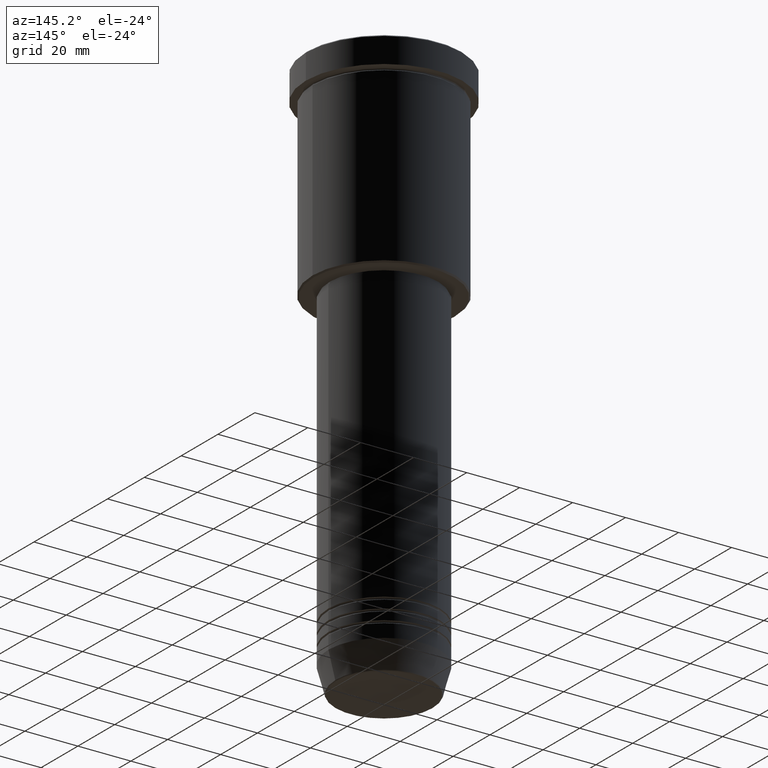
[diagram: clean part render]
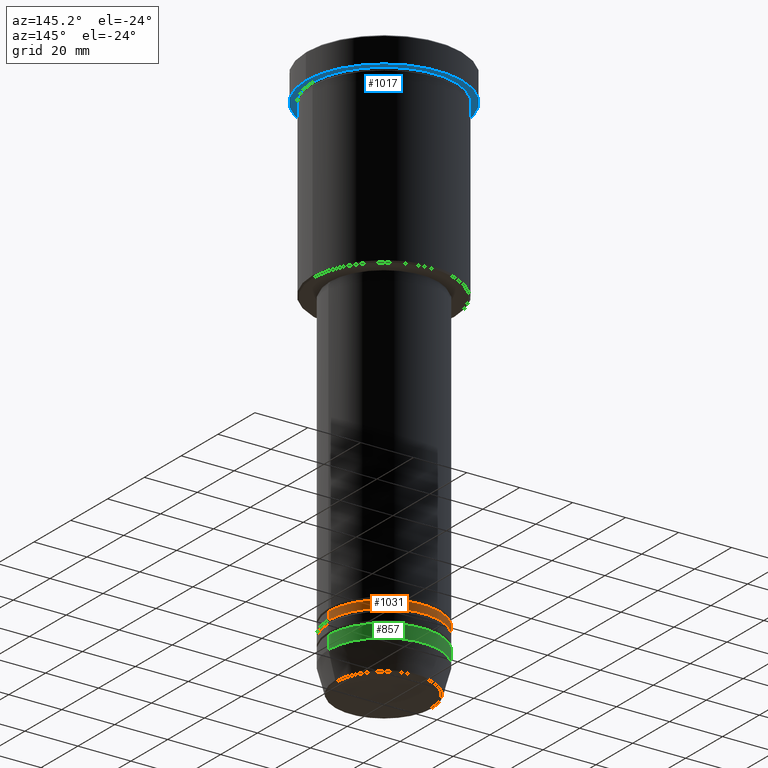
[diagram: same view with three faces highlighted in distinct colors, each labeled with its STEP entity id]
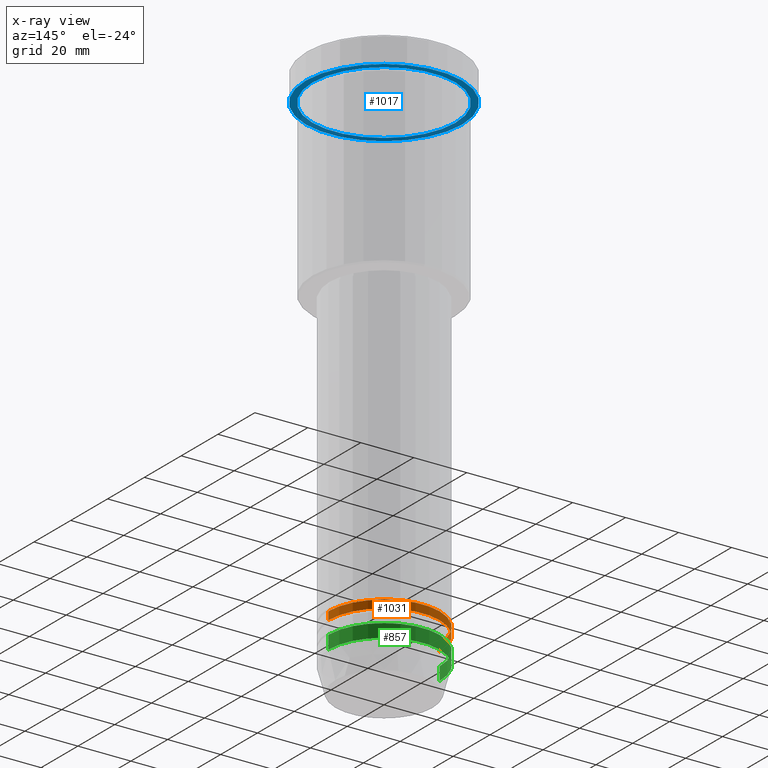
[diagram: x-ray of the same camera — body ghosted, the three highlighted faces saturated]
A machine part, auxiliary view with three faces highlighted in distinct colors.
The next image is the same camera in x-ray (body ghosted, the three faces saturated) — at least one of them is partly hidden behind the body in this view.
Their STEP definitions:

[orange] entity #1031 — the highlighted cylindrical surface (partial cylindrical patch) has radius 21 mm, axis along (-0, -0, 1).
#1 = ORIENTED_EDGE ( 'NONE', *, *, #1104, .T. ) ;
#52 = DIRECTION ( 'NONE',  ( -0.000000000000000000, -0.000000000000000000, 1.000000000000000000 ) ) ;
#87 = DIRECTION ( 'NONE',  ( -0.000000000000000000, -0.000000000000000000, 1.000000000000000000 ) ) ;
#151 = FACE_OUTER_BOUND ( 'NONE', #168, .T. ) ;
#153 = CARTESIAN_POINT ( 'NONE',  ( -21.00000000000000355, 2.571758278209442056E-15, 0.000000000000000000 ) ) ;
#164 = VECTOR ( 'NONE', #52, 1000.000000000000000 ) ;
#168 = EDGE_LOOP ( 'NONE', ( #1, #196, #826, #653 ) ) ;
#196 = ORIENTED_EDGE ( 'NONE', *, *, #737, .T. ) ;
#215 = DIRECTION ( 'NONE',  ( -0.000000000000000000, -0.000000000000000000, 1.000000000000000000 ) ) ;
#236 = VERTEX_POINT ( 'NONE', #746 ) ;
#258 = AXIS2_PLACEMENT_3D ( 'NONE', #1091, #87, #368 ) ;
#300 = VERTEX_POINT ( 'NONE', #323 ) ;
#323 = CARTESIAN_POINT ( 'NONE',  ( -21.00000000000000355, 2.571758278209442056E-15, -190.9999999999999432 ) ) ;
#340 = CYLINDRICAL_SURFACE ( 'NONE', #364, 21.00000000000000355 ) ;
#341 = VECTOR ( 'NONE', #215, 1000.000000000000000 ) ;
#364 = AXIS2_PLACEMENT_3D ( 'NONE', #873, #1043, #1064 ) ;
#368 = DIRECTION ( 'NONE',  ( 1.000000000000000000, 0.000000000000000000, 0.000000000000000000 ) ) ;
#407 = EDGE_CURVE ( 'NONE', #760, #944, #915, .T. ) ;
#427 = CARTESIAN_POINT ( 'NONE',  ( 21.00000000000000000, 0.000000000000000000, -187.9999999999999147 ) ) ;
#495 = LINE ( 'NONE', #849, #341 ) ;
#532 = DIRECTION ( 'NONE',  ( 1.000000000000000000, 0.000000000000000000, 0.000000000000000000 ) ) ;
#653 = ORIENTED_EDGE ( 'NONE', *, *, #875, .F. ) ;
#679 = CARTESIAN_POINT ( 'NONE',  ( -21.00000000000000000, 2.571758278209441661E-15, -187.9999999999999147 ) ) ;
#737 = EDGE_CURVE ( 'NONE', #300, #944, #780, .T. ) ;
#746 = CARTESIAN_POINT ( 'NONE',  ( 21.00000000000000355, 0.000000000000000000, -190.9999999999999432 ) ) ;
#760 = VERTEX_POINT ( 'NONE', #427 ) ;
#780 = LINE ( 'NONE', #153, #164 ) ;
#826 = ORIENTED_EDGE ( 'NONE', *, *, #407, .F. ) ;
#849 = CARTESIAN_POINT ( 'NONE',  ( 21.00000000000000355, 0.000000000000000000, 0.000000000000000000 ) ) ;
#873 = CARTESIAN_POINT ( 'NONE',  ( 0.000000000000000000, 0.000000000000000000, 0.000000000000000000 ) ) ;
#875 = EDGE_CURVE ( 'NONE', #236, #760, #495, .T. ) ;
#915 = CIRCLE ( 'NONE', #258, 21.00000000000000000 ) ;
#944 = VERTEX_POINT ( 'NONE', #679 ) ;
#961 = AXIS2_PLACEMENT_3D ( 'NONE', #1088, #1180, #532 ) ;
#1031 = ADVANCED_FACE ( 'NONE', ( #151 ), #340, .T. ) ;
#1036 = CIRCLE ( 'NONE', #961, 21.00000000000000355 ) ;
#1043 = DIRECTION ( 'NONE',  ( -0.000000000000000000, -0.000000000000000000, 1.000000000000000000 ) ) ;
#1064 = DIRECTION ( 'NONE',  ( 1.000000000000000000, 0.000000000000000000, 0.000000000000000000 ) ) ;
#1088 = CARTESIAN_POINT ( 'NONE',  ( 0.000000000000000000, 0.000000000000000000, -190.9999999999999432 ) ) ;
#1091 = CARTESIAN_POINT ( 'NONE',  ( 0.000000000000000000, 0.000000000000000000, -187.9999999999999147 ) ) ;
#1104 = EDGE_CURVE ( 'NONE', #236, #300, #1036, .T. ) ;
#1180 = DIRECTION ( 'NONE',  ( -0.000000000000000000, -0.000000000000000000, 1.000000000000000000 ) ) ;

[blue] entity #1017 — the highlighted planar face has unit normal (0, 0, -1).
#7 = AXIS2_PLACEMENT_3D ( 'NONE', #526, #511, #782 ) ;
#25 = AXIS2_PLACEMENT_3D ( 'NONE', #1119, #305, #667 ) ;
#60 = ORIENTED_EDGE ( 'NONE', *, *, #985, .T. ) ;
#74 = PLANE ( 'NONE',  #1113 ) ;
#94 = EDGE_CURVE ( 'NONE', #613, #393, #1072, .T. ) ;
#126 = ORIENTED_EDGE ( 'NONE', *, *, #681, .T. ) ;
#146 = ORIENTED_EDGE ( 'NONE', *, *, #94, .F. ) ;
#147 = CIRCLE ( 'NONE', #7, 27.00000000000000355 ) ;
#194 = CARTESIAN_POINT ( 'NONE',  ( 0.000000000000000000, 0.000000000000000000, -9.999999999999992895 ) ) ;
#202 = CIRCLE ( 'NONE', #981, 29.50000000000000000 ) ;
#205 = CARTESIAN_POINT ( 'NONE',  ( 29.50000000000000000, 0.000000000000000000, -9.999999999999992895 ) ) ;
#219 = CIRCLE ( 'NONE', #25, 27.00000000000000355 ) ;
#240 = FACE_BOUND ( 'NONE', #265, .T. ) ;
#252 = DIRECTION ( 'NONE',  ( 0.000000000000000000, 0.000000000000000000, -1.000000000000000000 ) ) ;
#265 = EDGE_LOOP ( 'NONE', ( #126, #60 ) ) ;
#268 = DIRECTION ( 'NONE',  ( 1.000000000000000000, 0.000000000000000000, 0.000000000000000000 ) ) ;
#305 = DIRECTION ( 'NONE',  ( -0.000000000000000000, -0.000000000000000000, 1.000000000000000000 ) ) ;
#326 = VERTEX_POINT ( 'NONE', #334 ) ;
#329 = CARTESIAN_POINT ( 'NONE',  ( 0.000000000000000000, 29.50000000000000000, -9.999999999999992895 ) ) ;
#334 = CARTESIAN_POINT ( 'NONE',  ( -27.00000000000000355, 0.000000000000000000, -9.999999999999992895 ) ) ;
#374 = DIRECTION ( 'NONE',  ( -0.000000000000000000, -0.000000000000000000, 1.000000000000000000 ) ) ;
#393 = VERTEX_POINT ( 'NONE', #819 ) ;
#400 = EDGE_LOOP ( 'NONE', ( #146, #1045 ) ) ;
#511 = DIRECTION ( 'NONE',  ( -0.000000000000000000, -0.000000000000000000, 1.000000000000000000 ) ) ;
#526 = CARTESIAN_POINT ( 'NONE',  ( 0.000000000000000000, 0.000000000000000000, -9.999999999999992895 ) ) ;
#575 = VERTEX_POINT ( 'NONE', #675 ) ;
#606 = DIRECTION ( 'NONE',  ( -1.000000000000000000, 0.000000000000000000, -0.000000000000000000 ) ) ;
#613 = VERTEX_POINT ( 'NONE', #205 ) ;
#667 = DIRECTION ( 'NONE',  ( -1.000000000000000000, 0.000000000000000000, 0.000000000000000000 ) ) ;
#675 = CARTESIAN_POINT ( 'NONE',  ( 27.00000000000000355, 3.306546357697854128E-15, -9.999999999999992895 ) ) ;
#681 = EDGE_CURVE ( 'NONE', #326, #575, #219, .T. ) ;
#716 = CARTESIAN_POINT ( 'NONE',  ( 0.000000000000000000, 0.000000000000000000, -9.999999999999992895 ) ) ;
#742 = DIRECTION ( 'NONE',  ( -0.000000000000000000, -0.000000000000000000, 1.000000000000000000 ) ) ;
#782 = DIRECTION ( 'NONE',  ( -1.000000000000000000, 0.000000000000000000, 0.000000000000000000 ) ) ;
#809 = AXIS2_PLACEMENT_3D ( 'NONE', #194, #742, #1126 ) ;
#819 = CARTESIAN_POINT ( 'NONE',  ( -29.50000000000000000, 3.612708057484691604E-15, -9.999999999999992895 ) ) ;
#981 = AXIS2_PLACEMENT_3D ( 'NONE', #716, #374, #268 ) ;
#985 = EDGE_CURVE ( 'NONE', #575, #326, #147, .T. ) ;
#1017 = ADVANCED_FACE ( 'NONE', ( #240, #1163 ), #74, .T. ) ;
#1045 = ORIENTED_EDGE ( 'NONE', *, *, #1177, .F. ) ;
#1072 = CIRCLE ( 'NONE', #809, 29.50000000000000000 ) ;
#1113 = AXIS2_PLACEMENT_3D ( 'NONE', #329, #252, #606 ) ;
#1119 = CARTESIAN_POINT ( 'NONE',  ( 0.000000000000000000, 0.000000000000000000, -9.999999999999992895 ) ) ;
#1126 = DIRECTION ( 'NONE',  ( 1.000000000000000000, 0.000000000000000000, 0.000000000000000000 ) ) ;
#1163 = FACE_OUTER_BOUND ( 'NONE', #400, .T. ) ;
#1177 = EDGE_CURVE ( 'NONE', #393, #613, #202, .T. ) ;

[green] entity #857 — the highlighted cylindrical surface (partial cylindrical patch) has radius 21 mm, axis along (-0, -0, 1).
#14 = ORIENTED_EDGE ( 'NONE', *, *, #136, .T. ) ;
#26 = DIRECTION ( 'NONE',  ( -0.000000000000000000, -0.000000000000000000, 1.000000000000000000 ) ) ;
#37 = LINE ( 'NONE', #922, #731 ) ;
#53 = CARTESIAN_POINT ( 'NONE',  ( -21.00000000000000000, 2.571758278209441661E-15, 0.000000000000000000 ) ) ;
#100 = AXIS2_PLACEMENT_3D ( 'NONE', #518, #244, #971 ) ;
#111 = CARTESIAN_POINT ( 'NONE',  ( 21.00000000000000000, 0.000000000000000000, -196.0000000000000284 ) ) ;
#112 = CARTESIAN_POINT ( 'NONE',  ( 0.000000000000000000, 0.000000000000000000, -201.0000000000000000 ) ) ;
#136 = EDGE_CURVE ( 'NONE', #504, #1053, #468, .T. ) ;
#183 = CARTESIAN_POINT ( 'NONE',  ( 21.00000000000000000, 0.000000000000000000, -201.0000000000000000 ) ) ;
#227 = EDGE_CURVE ( 'NONE', #504, #553, #37, .T. ) ;
#238 = DIRECTION ( 'NONE',  ( -0.000000000000000000, -0.000000000000000000, 1.000000000000000000 ) ) ;
#244 = DIRECTION ( 'NONE',  ( -0.000000000000000000, -0.000000000000000000, 1.000000000000000000 ) ) ;
#289 = ORIENTED_EDGE ( 'NONE', *, *, #337, .T. ) ;
#337 = EDGE_CURVE ( 'NONE', #1053, #1096, #953, .T. ) ;
#352 = CARTESIAN_POINT ( 'NONE',  ( -21.00000000000000000, 2.571758278209441661E-15, -201.0000000000000000 ) ) ;
#378 = CIRCLE ( 'NONE', #100, 21.00000000000000000 ) ;
#391 = CARTESIAN_POINT ( 'NONE',  ( 0.000000000000000000, 0.000000000000000000, 0.000000000000000000 ) ) ;
#399 = DIRECTION ( 'NONE',  ( 1.000000000000000000, 0.000000000000000000, 0.000000000000000000 ) ) ;
#414 = VECTOR ( 'NONE', #238, 1000.000000000000000 ) ;
#440 = EDGE_LOOP ( 'NONE', ( #14, #289, #527, #629 ) ) ;
#468 = CIRCLE ( 'NONE', #901, 21.00000000000000000 ) ;
#502 = DIRECTION ( 'NONE',  ( -0.000000000000000000, -0.000000000000000000, 1.000000000000000000 ) ) ;
#504 = VERTEX_POINT ( 'NONE', #183 ) ;
#518 = CARTESIAN_POINT ( 'NONE',  ( 0.000000000000000000, 0.000000000000000000, -196.0000000000000284 ) ) ;
#527 = ORIENTED_EDGE ( 'NONE', *, *, #777, .F. ) ;
#553 = VERTEX_POINT ( 'NONE', #111 ) ;
#566 = DIRECTION ( 'NONE',  ( 1.000000000000000000, 0.000000000000000000, 0.000000000000000000 ) ) ;
#584 = FACE_OUTER_BOUND ( 'NONE', #440, .T. ) ;
#629 = ORIENTED_EDGE ( 'NONE', *, *, #227, .F. ) ;
#697 = AXIS2_PLACEMENT_3D ( 'NONE', #391, #26, #399 ) ;
#731 = VECTOR ( 'NONE', #948, 1000.000000000000000 ) ;
#777 = EDGE_CURVE ( 'NONE', #553, #1096, #378, .T. ) ;
#857 = ADVANCED_FACE ( 'NONE', ( #584 ), #943, .T. ) ;
#901 = AXIS2_PLACEMENT_3D ( 'NONE', #112, #502, #566 ) ;
#922 = CARTESIAN_POINT ( 'NONE',  ( 21.00000000000000000, 0.000000000000000000, 0.000000000000000000 ) ) ;
#943 = CYLINDRICAL_SURFACE ( 'NONE', #697, 21.00000000000000000 ) ;
#948 = DIRECTION ( 'NONE',  ( -0.000000000000000000, -0.000000000000000000, 1.000000000000000000 ) ) ;
#953 = LINE ( 'NONE', #53, #414 ) ;
#971 = DIRECTION ( 'NONE',  ( 1.000000000000000000, 0.000000000000000000, 0.000000000000000000 ) ) ;
#1053 = VERTEX_POINT ( 'NONE', #352 ) ;
#1078 = CARTESIAN_POINT ( 'NONE',  ( -21.00000000000000000, 2.571758278209441661E-15, -196.0000000000000284 ) ) ;
#1096 = VERTEX_POINT ( 'NONE', #1078 ) ;